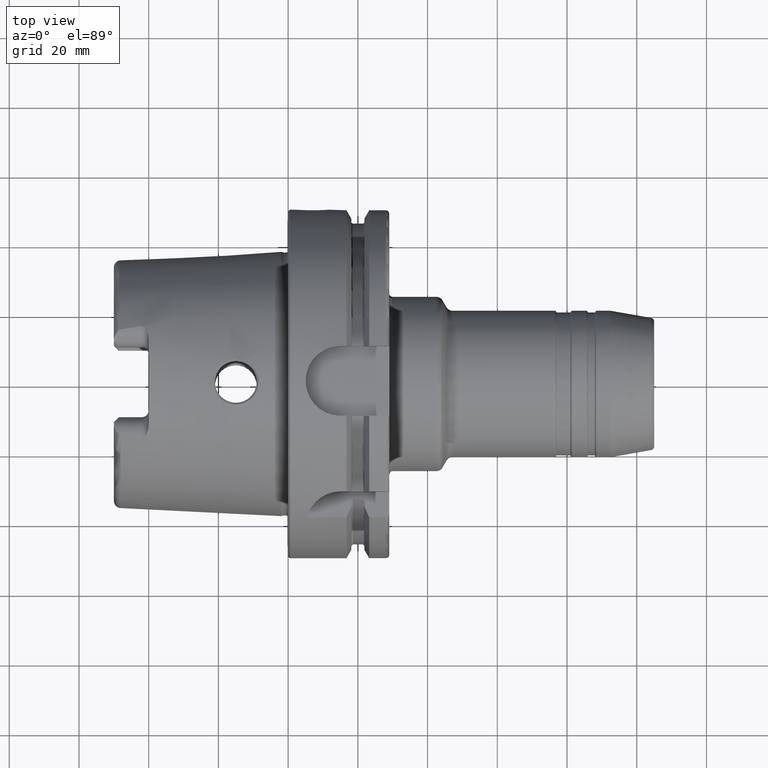
[diagram: clean part render]
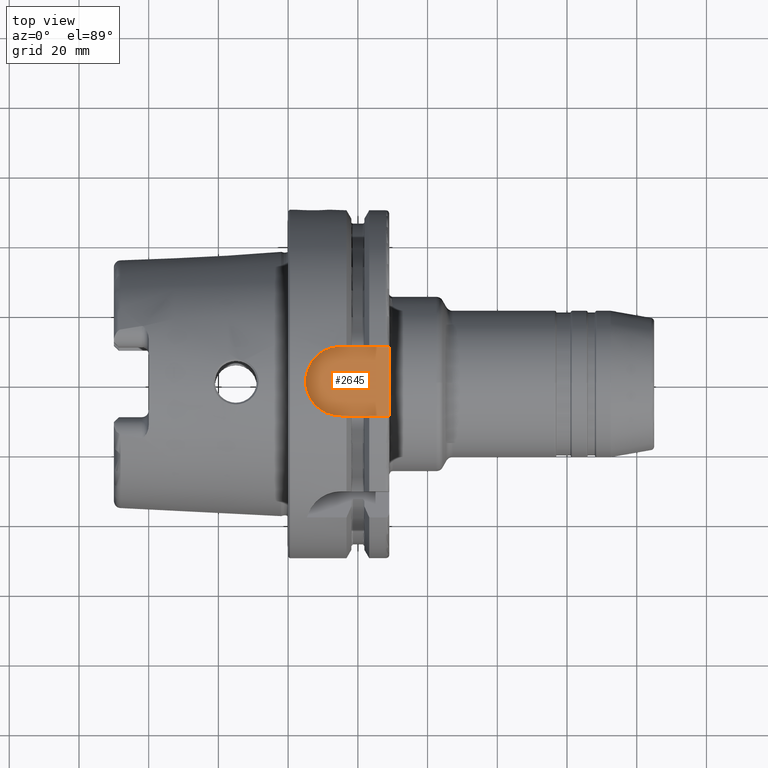
[diagram: same view with one face highlighted and labeled with its STEP entity id]
A machine part, top view. The second image highlights one B-rep face of the part: STEP entity #2645.
In plain terms, the highlighted planar face has unit normal (0, 0, 1).
Its self-contained STEP definition (entity closure, byte-faithful):
#129=PLANE('',#2977);
#178=LINE('',#4164,#293);
#258=LINE('',#5477,#373);
#261=LINE('',#5484,#376);
#293=VECTOR('',#3324,10.);
#373=VECTOR('',#3710,10.);
#376=VECTOR('',#3719,10.);
#521=FACE_OUTER_BOUND('',#664,.T.);
#664=EDGE_LOOP('',(#2276,#2277,#2278,#2279));
#884=CIRCLE('',#2975,10.);
#1028=VERTEX_POINT('',#4161);
#1029=VERTEX_POINT('',#4163);
#1201=VERTEX_POINT('',#5476);
#1202=VERTEX_POINT('',#5480);
#1346=EDGE_CURVE('',#1028,#1029,#178,.T.);
#1582=EDGE_CURVE('',#1201,#1029,#258,.T.);
#1584=EDGE_CURVE('',#1202,#1201,#884,.T.);
#1586=EDGE_CURVE('',#1028,#1202,#261,.T.);
#2276=ORIENTED_EDGE('',*,*,#1586,.T.);
#2277=ORIENTED_EDGE('',*,*,#1584,.T.);
#2278=ORIENTED_EDGE('',*,*,#1582,.T.);
#2279=ORIENTED_EDGE('',*,*,#1346,.F.);
#2645=ADVANCED_FACE('',(#521),#129,.T.);
#2975=AXIS2_PLACEMENT_3D('',#5481,#3714,#3715);
#2977=AXIS2_PLACEMENT_3D('',#5485,#3720,#3721);
#3324=DIRECTION('',(0.,-1.,0.));
#3710=DIRECTION('',(1.,7.93016446160826E-17,0.));
#3714=DIRECTION('center_axis',(0.,0.,1.));
#3715=DIRECTION('ref_axis',(0.,1.,0.));
#3719=DIRECTION('',(-1.,0.,0.));
#3720=DIRECTION('center_axis',(0.,0.,1.));
#3721=DIRECTION('ref_axis',(1.,0.,0.));
#4161=CARTESIAN_POINT('',(29.,10.,44.));
#4163=CARTESIAN_POINT('',(29.,-10.,44.));
#4164=CARTESIAN_POINT('',(29.,0.,44.));
#5476=CARTESIAN_POINT('',(15.,-10.,44.));
#5477=CARTESIAN_POINT('',(15.,-10.,44.));
#5480=CARTESIAN_POINT('',(15.,10.,44.));
#5481=CARTESIAN_POINT('Origin',(15.,0.,44.));
#5484=CARTESIAN_POINT('',(29.,10.,44.));
#5485=CARTESIAN_POINT('Origin',(17.,0.,44.));